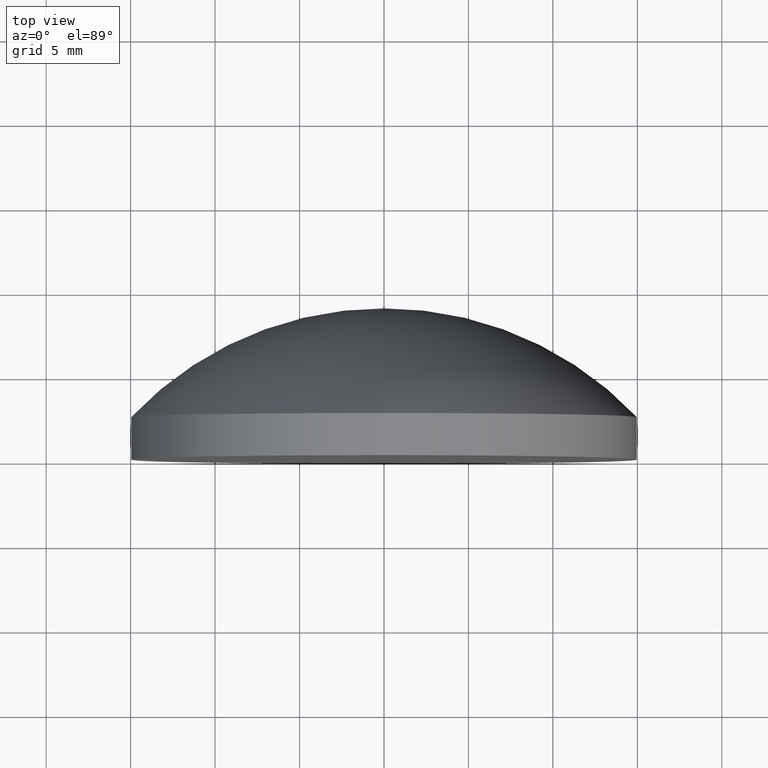
[diagram: clean part render]
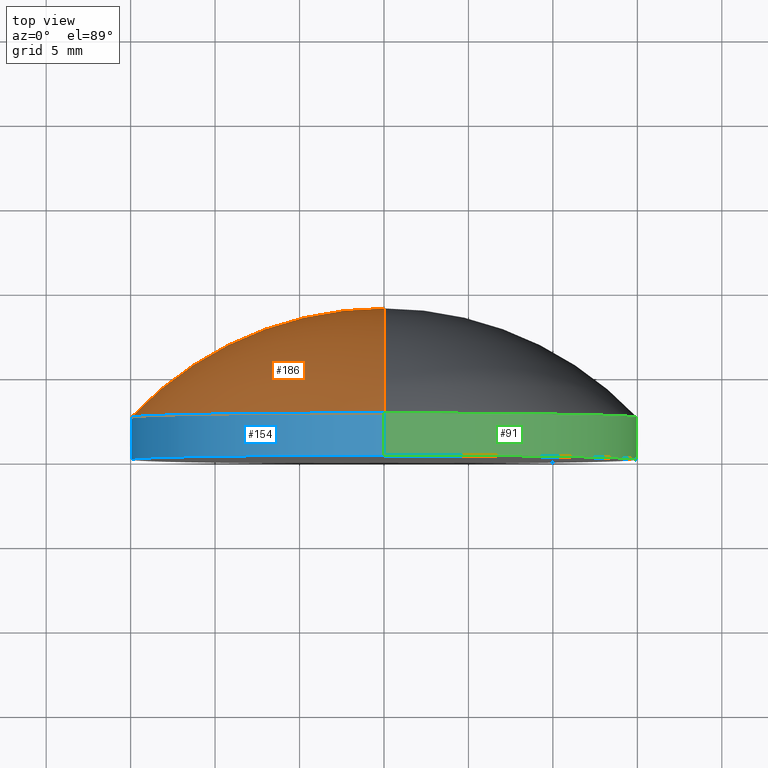
[diagram: same view with three faces highlighted in distinct colors, each labeled with its STEP entity id]
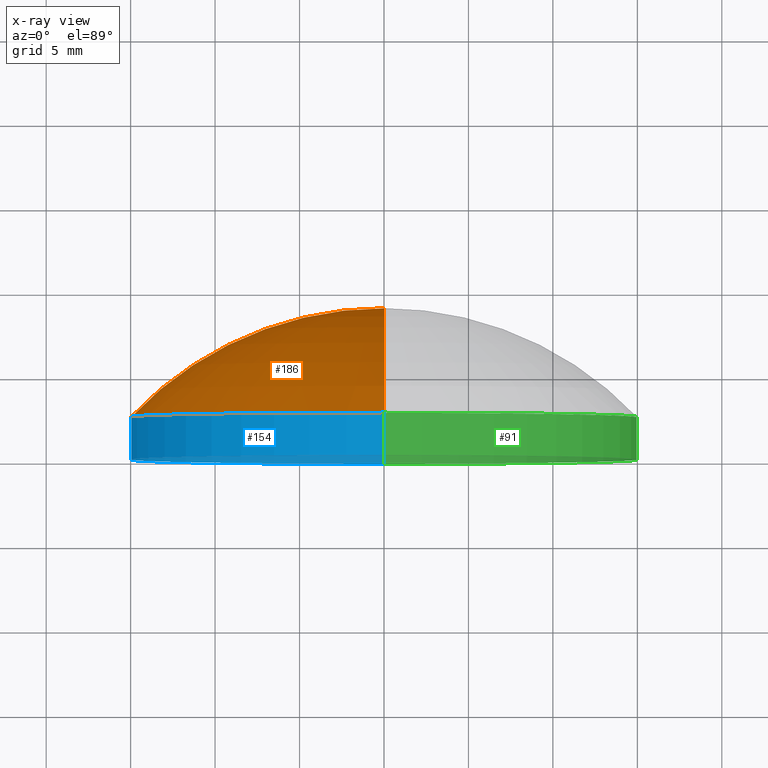
[diagram: x-ray of the same camera — body ghosted, the three highlighted faces saturated]
A machine part, top view with three faces highlighted in distinct colors.
The next image is the same camera in x-ray (body ghosted, the three faces saturated) — at least one of them is partly hidden behind the body in this view.
Their STEP definitions:

[orange] entity #186 — the highlighted toroidal blend (fillet) surface has major radius 0.0013 mm and minor (blend) radius 20.67 mm.
#5 = DIRECTION ( 'NONE',  ( 0.000000000000000000, 0.000000000000000000, 1.000000000000000000 ) ) ;
#10 = VERTEX_POINT ( 'NONE', #118 ) ;
#12 = EDGE_CURVE ( 'NONE', #42, #10, #15, .T. ) ;
#15 = CIRCLE ( 'NONE', #129, 20.66999999999999460 ) ;
#20 = ORIENTED_EDGE ( 'NONE', *, *, #175, .T. ) ;
#27 = DIRECTION ( 'NONE',  ( 1.224646799147353454E-16, 0.000000000000000000, -1.000000000000000000 ) ) ;
#38 = AXIS2_PLACEMENT_3D ( 'NONE', #93, #75, #111 ) ;
#42 = VERTEX_POINT ( 'NONE', #179 ) ;
#47 = TOROIDAL_SURFACE ( 'NONE', #38, -0.001349981043710993256, 20.66999999999999815 ) ;
#55 = AXIS2_PLACEMENT_3D ( 'NONE', #188, #140, #27 ) ;
#63 = CIRCLE ( 'NONE', #194, 15.00000000000000000 ) ;
#72 = ORIENTED_EDGE ( 'NONE', *, *, #197, .F. ) ;
#73 = ORIENTED_EDGE ( 'NONE', *, *, #12, .T. ) ;
#75 = DIRECTION ( 'NONE',  ( -0.000000000000000000, 1.000000000000000000, -0.000000000000000000 ) ) ;
#78 = DIRECTION ( 'NONE',  ( -0.000000000000000000, 1.000000000000000000, -0.000000000000000000 ) ) ;
#93 = CARTESIAN_POINT ( 'NONE',  ( 0.000000000000000000, -11.71999995591560406, 0.000000000000000000 ) ) ;
#94 = FACE_OUTER_BOUND ( 'NONE', #134, .T. ) ;
#111 = DIRECTION ( 'NONE',  ( 0.000000000000000000, 0.000000000000000000, 1.000000000000000000 ) ) ;
#112 = CIRCLE ( 'NONE', #55, 20.66999999999999460 ) ;
#118 = CARTESIAN_POINT ( 'NONE',  ( 0.000000000000000000, 8.949999999999999289, 0.000000000000000000 ) ) ;
#121 = DIRECTION ( 'NONE',  ( -1.000000000000000000, 0.000000000000000000, 0.000000000000000000 ) ) ;
#124 = CARTESIAN_POINT ( 'NONE',  ( 0.000000000000000000, 2.499999999999998668, 0.000000000000000000 ) ) ;
#129 = AXIS2_PLACEMENT_3D ( 'NONE', #148, #121, #193 ) ;
#134 = EDGE_LOOP ( 'NONE', ( #72, #20, #73 ) ) ;
#140 = DIRECTION ( 'NONE',  ( 1.000000000000000000, 0.000000000000000000, 1.224646799147353207E-16 ) ) ;
#148 = CARTESIAN_POINT ( 'NONE',  ( 0.000000000000000000, -11.71999995591560406, -0.001349981043710993256 ) ) ;
#159 = CARTESIAN_POINT ( 'NONE',  ( 1.836970198721029589E-15, 2.499999999999997780, -15.00000000000000000 ) ) ;
#175 = EDGE_CURVE ( 'NONE', #190, #42, #63, .T. ) ;
#179 = CARTESIAN_POINT ( 'NONE',  ( 0.000000000000000000, 2.499999999999997780, 15.00000000000000000 ) ) ;
#186 = ADVANCED_FACE ( 'NONE', ( #94 ), #47, .T. ) ;
#188 = CARTESIAN_POINT ( 'NONE',  ( -1.653249964090270865E-19, -11.71999995591560406, 0.001349981043710993256 ) ) ;
#190 = VERTEX_POINT ( 'NONE', #159 ) ;
#193 = DIRECTION ( 'NONE',  ( 0.000000000000000000, 0.000000000000000000, 1.000000000000000000 ) ) ;
#194 = AXIS2_PLACEMENT_3D ( 'NONE', #124, #78, #5 ) ;
#197 = EDGE_CURVE ( 'NONE', #190, #10, #112, .T. ) ;

[blue] entity #154 — the highlighted cylindrical surface (partial cylindrical patch) has radius 15 mm, axis along (-0, 1, -0).
#5 = DIRECTION ( 'NONE',  ( 0.000000000000000000, 0.000000000000000000, 1.000000000000000000 ) ) ;
#18 = EDGE_CURVE ( 'NONE', #41, #190, #122, .T. ) ;
#23 = ORIENTED_EDGE ( 'NONE', *, *, #146, .T. ) ;
#31 = DIRECTION ( 'NONE',  ( 0.000000000000000000, 0.000000000000000000, 1.000000000000000000 ) ) ;
#34 = DIRECTION ( 'NONE',  ( -0.000000000000000000, 1.000000000000000000, -0.000000000000000000 ) ) ;
#41 = VERTEX_POINT ( 'NONE', #131 ) ;
#42 = VERTEX_POINT ( 'NONE', #179 ) ;
#46 = CARTESIAN_POINT ( 'NONE',  ( 0.000000000000000000, 8.949999999999999289, 15.00000000000000000 ) ) ;
#57 = VECTOR ( 'NONE', #116, 1000.000000000000000 ) ;
#63 = CIRCLE ( 'NONE', #194, 15.00000000000000000 ) ;
#67 = ORIENTED_EDGE ( 'NONE', *, *, #18, .F. ) ;
#74 = VECTOR ( 'NONE', #169, 1000.000000000000000 ) ;
#77 = CARTESIAN_POINT ( 'NONE',  ( 0.000000000000000000, 8.949999999999999289, 0.000000000000000000 ) ) ;
#78 = DIRECTION ( 'NONE',  ( -0.000000000000000000, 1.000000000000000000, -0.000000000000000000 ) ) ;
#81 = CIRCLE ( 'NONE', #185, 15.00000000000000000 ) ;
#85 = EDGE_LOOP ( 'NONE', ( #67, #191, #23, #87 ) ) ;
#87 = ORIENTED_EDGE ( 'NONE', *, *, #175, .F. ) ;
#96 = LINE ( 'NONE', #46, #74 ) ;
#100 = AXIS2_PLACEMENT_3D ( 'NONE', #77, #34, #31 ) ;
#107 = EDGE_CURVE ( 'NONE', #41, #177, #81, .T. ) ;
#109 = DIRECTION ( 'NONE',  ( -0.000000000000000000, 1.000000000000000000, -0.000000000000000000 ) ) ;
#116 = DIRECTION ( 'NONE',  ( -0.000000000000000000, 1.000000000000000000, -0.000000000000000000 ) ) ;
#122 = LINE ( 'NONE', #181, #57 ) ;
#124 = CARTESIAN_POINT ( 'NONE',  ( 0.000000000000000000, 2.499999999999998668, 0.000000000000000000 ) ) ;
#125 = CARTESIAN_POINT ( 'NONE',  ( 0.000000000000000000, -1.734723475976807094E-15, 15.00000000000000000 ) ) ;
#128 = DIRECTION ( 'NONE',  ( 0.000000000000000000, 0.000000000000000000, 1.000000000000000000 ) ) ;
#131 = CARTESIAN_POINT ( 'NONE',  ( 1.836970198721029589E-15, -1.734723475976807094E-15, -15.00000000000000000 ) ) ;
#146 = EDGE_CURVE ( 'NONE', #177, #42, #96, .T. ) ;
#154 = ADVANCED_FACE ( 'NONE', ( #161 ), #174, .T. ) ;
#159 = CARTESIAN_POINT ( 'NONE',  ( 1.836970198721029589E-15, 2.499999999999997780, -15.00000000000000000 ) ) ;
#161 = FACE_OUTER_BOUND ( 'NONE', #85, .T. ) ;
#169 = DIRECTION ( 'NONE',  ( -0.000000000000000000, 1.000000000000000000, -0.000000000000000000 ) ) ;
#174 = CYLINDRICAL_SURFACE ( 'NONE', #100, 15.00000000000000000 ) ;
#175 = EDGE_CURVE ( 'NONE', #190, #42, #63, .T. ) ;
#177 = VERTEX_POINT ( 'NONE', #125 ) ;
#179 = CARTESIAN_POINT ( 'NONE',  ( 0.000000000000000000, 2.499999999999997780, 15.00000000000000000 ) ) ;
#181 = CARTESIAN_POINT ( 'NONE',  ( 1.836970198721029589E-15, 8.949999999999999289, -15.00000000000000000 ) ) ;
#183 = CARTESIAN_POINT ( 'NONE',  ( 0.000000000000000000, -1.734723475976807094E-15, 0.000000000000000000 ) ) ;
#185 = AXIS2_PLACEMENT_3D ( 'NONE', #183, #109, #128 ) ;
#190 = VERTEX_POINT ( 'NONE', #159 ) ;
#191 = ORIENTED_EDGE ( 'NONE', *, *, #107, .T. ) ;
#194 = AXIS2_PLACEMENT_3D ( 'NONE', #124, #78, #5 ) ;

[green] entity #91 — the highlighted cylindrical surface (partial cylindrical patch) has radius 15 mm, axis along (-0, 1, -0).
#1 = DIRECTION ( 'NONE',  ( 0.000000000000000000, 0.000000000000000000, 1.000000000000000000 ) ) ;
#6 = CARTESIAN_POINT ( 'NONE',  ( 0.000000000000000000, -1.734723475976807094E-15, 0.000000000000000000 ) ) ;
#8 = ORIENTED_EDGE ( 'NONE', *, *, #195, .F. ) ;
#13 = AXIS2_PLACEMENT_3D ( 'NONE', #58, #171, #182 ) ;
#18 = EDGE_CURVE ( 'NONE', #41, #190, #122, .T. ) ;
#33 = DIRECTION ( 'NONE',  ( -0.000000000000000000, 1.000000000000000000, -0.000000000000000000 ) ) ;
#41 = VERTEX_POINT ( 'NONE', #131 ) ;
#42 = VERTEX_POINT ( 'NONE', #179 ) ;
#46 = CARTESIAN_POINT ( 'NONE',  ( 0.000000000000000000, 8.949999999999999289, 15.00000000000000000 ) ) ;
#57 = VECTOR ( 'NONE', #116, 1000.000000000000000 ) ;
#58 = CARTESIAN_POINT ( 'NONE',  ( 0.000000000000000000, 2.499999999999998668, 0.000000000000000000 ) ) ;
#64 = DIRECTION ( 'NONE',  ( 0.000000000000000000, 0.000000000000000000, 1.000000000000000000 ) ) ;
#68 = AXIS2_PLACEMENT_3D ( 'NONE', #6, #33, #1 ) ;
#74 = VECTOR ( 'NONE', #169, 1000.000000000000000 ) ;
#79 = FACE_OUTER_BOUND ( 'NONE', #167, .T. ) ;
#89 = EDGE_CURVE ( 'NONE', #177, #41, #158, .T. ) ;
#91 = ADVANCED_FACE ( 'NONE', ( #79 ), #199, .T. ) ;
#96 = LINE ( 'NONE', #46, #74 ) ;
#103 = ORIENTED_EDGE ( 'NONE', *, *, #18, .T. ) ;
#108 = CARTESIAN_POINT ( 'NONE',  ( 0.000000000000000000, 8.949999999999999289, 0.000000000000000000 ) ) ;
#116 = DIRECTION ( 'NONE',  ( -0.000000000000000000, 1.000000000000000000, -0.000000000000000000 ) ) ;
#122 = LINE ( 'NONE', #181, #57 ) ;
#125 = CARTESIAN_POINT ( 'NONE',  ( 0.000000000000000000, -1.734723475976807094E-15, 15.00000000000000000 ) ) ;
#127 = AXIS2_PLACEMENT_3D ( 'NONE', #108, #187, #64 ) ;
#131 = CARTESIAN_POINT ( 'NONE',  ( 1.836970198721029589E-15, -1.734723475976807094E-15, -15.00000000000000000 ) ) ;
#133 = ORIENTED_EDGE ( 'NONE', *, *, #146, .F. ) ;
#146 = EDGE_CURVE ( 'NONE', #177, #42, #96, .T. ) ;
#150 = ORIENTED_EDGE ( 'NONE', *, *, #89, .T. ) ;
#158 = CIRCLE ( 'NONE', #68, 15.00000000000000000 ) ;
#159 = CARTESIAN_POINT ( 'NONE',  ( 1.836970198721029589E-15, 2.499999999999997780, -15.00000000000000000 ) ) ;
#162 = CIRCLE ( 'NONE', #13, 15.00000000000000000 ) ;
#167 = EDGE_LOOP ( 'NONE', ( #150, #103, #8, #133 ) ) ;
#169 = DIRECTION ( 'NONE',  ( -0.000000000000000000, 1.000000000000000000, -0.000000000000000000 ) ) ;
#171 = DIRECTION ( 'NONE',  ( -0.000000000000000000, 1.000000000000000000, -0.000000000000000000 ) ) ;
#177 = VERTEX_POINT ( 'NONE', #125 ) ;
#179 = CARTESIAN_POINT ( 'NONE',  ( 0.000000000000000000, 2.499999999999997780, 15.00000000000000000 ) ) ;
#181 = CARTESIAN_POINT ( 'NONE',  ( 1.836970198721029589E-15, 8.949999999999999289, -15.00000000000000000 ) ) ;
#182 = DIRECTION ( 'NONE',  ( 0.000000000000000000, 0.000000000000000000, 1.000000000000000000 ) ) ;
#187 = DIRECTION ( 'NONE',  ( -0.000000000000000000, 1.000000000000000000, -0.000000000000000000 ) ) ;
#190 = VERTEX_POINT ( 'NONE', #159 ) ;
#195 = EDGE_CURVE ( 'NONE', #42, #190, #162, .T. ) ;
#199 = CYLINDRICAL_SURFACE ( 'NONE', #127, 15.00000000000000000 ) ;